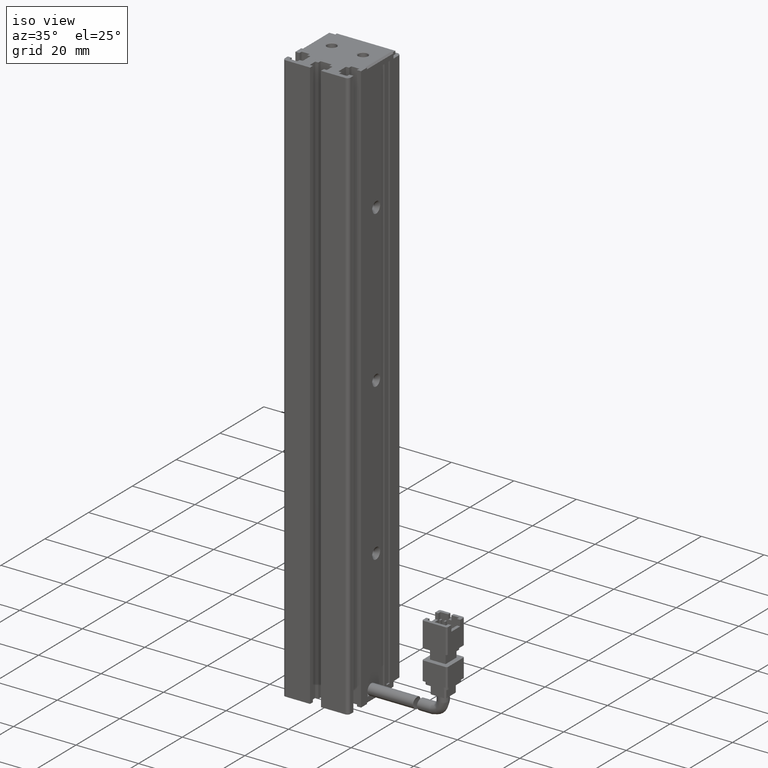
[diagram: clean part render]
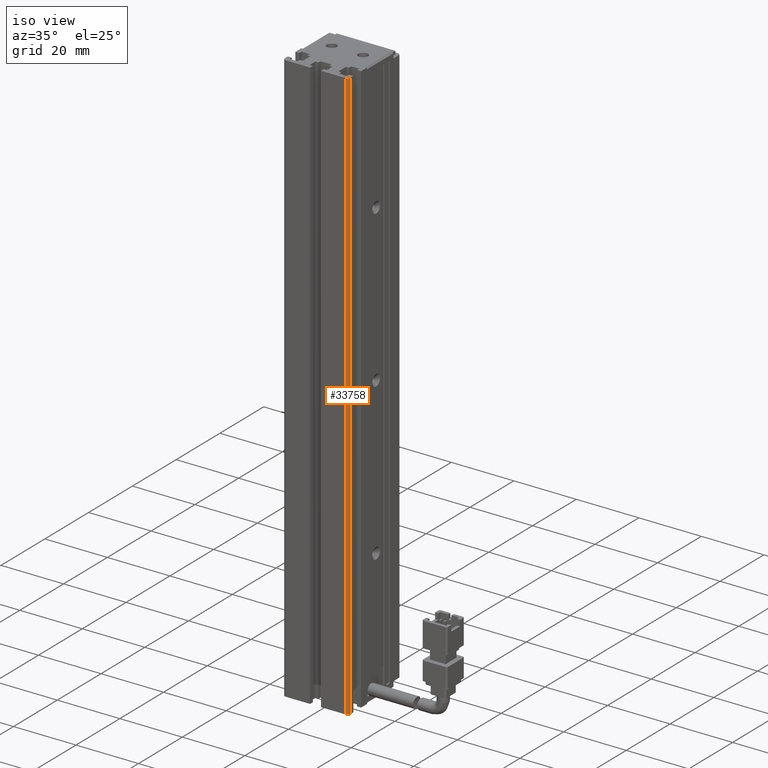
[diagram: same view with one face highlighted and labeled with its STEP entity id]
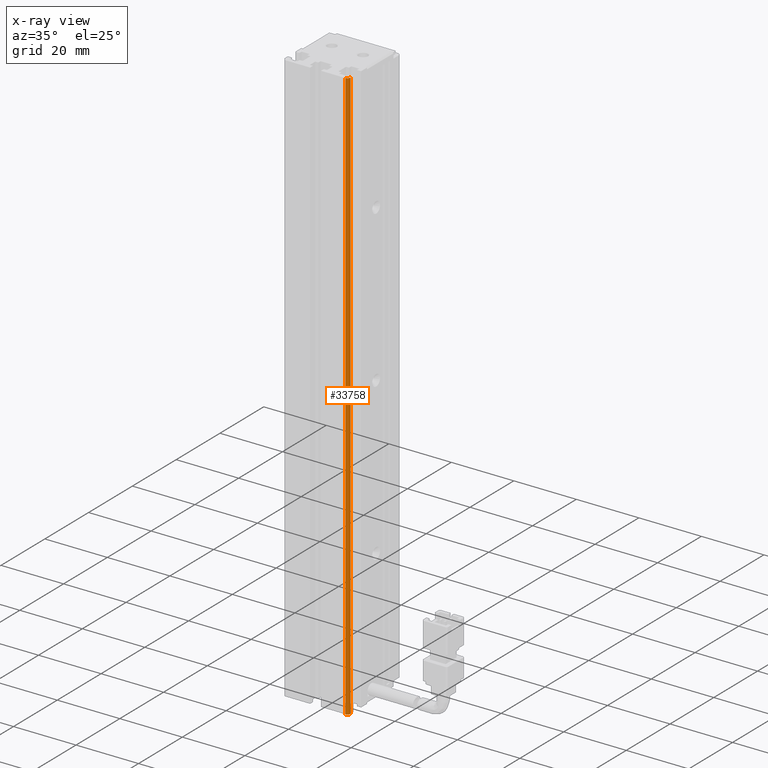
[diagram: x-ray of the same camera — body ghosted, the highlighted face saturated]
A machine part, iso view. The second image highlights one B-rep face of the part: STEP entity #33758.
The next image is the same camera in x-ray: the body ghosted, the highlighted face saturated — about 0% of this face is hidden behind the body in this view.
In plain terms, the highlighted cylindrical surface (edge-blend (fillet) strip) has radius 1 mm, axis along (-0, -0, -1).
Its self-contained STEP definition (entity closure, byte-faithful):
#208 = AXIS2_PLACEMENT_3D ( 'NONE', #18156, #44345, #30751 ) ;
#575 = LINE ( 'NONE', #30992, #33979 ) ;
#1624 = ORIENTED_EDGE ( 'NONE', *, *, #5862, .T. ) ;
#1779 = CARTESIAN_POINT ( 'NONE',  ( 51.42537974683541800, 11.99073232304837000, -23.00000000000000700 ) ) ;
#2697 = EDGE_CURVE ( 'NONE', #18262, #43904, #21107, .T. ) ;
#3480 = VERTEX_POINT ( 'NONE', #1779 ) ;
#5862 = EDGE_CURVE ( 'NONE', #26813, #3480, #575, .T. ) ;
#7258 = CYLINDRICAL_SURFACE ( 'NONE', #208, 1.000000000000000900 ) ;
#8526 = EDGE_CURVE ( 'NONE', #3480, #18262, #10657, .T. ) ;
#9044 = DIRECTION ( 'NONE',  ( 0.0000000000000000000, 0.0000000000000000000, 1.000000000000000000 ) ) ;
#9207 = DIRECTION ( 'NONE',  ( -1.000000000000000000, 0.0000000000000000000, 0.0000000000000000000 ) ) ;
#10359 = CARTESIAN_POINT ( 'NONE',  ( 50.42537974683541800, 10.99073232304837000, -23.00000000000000700 ) ) ;
#10657 = CIRCLE ( 'NONE', #40720, 1.000000000000000900 ) ;
#17031 = ORIENTED_EDGE ( 'NONE', *, *, #2697, .T. ) ;
#18156 = CARTESIAN_POINT ( 'NONE',  ( 50.42537974683541800, 11.99073232304837000, -23.00000000000000700 ) ) ;
#18262 = VERTEX_POINT ( 'NONE', #41257 ) ;
#19372 = EDGE_LOOP ( 'NONE', ( #26095, #17031, #47831, #1624 ) ) ;
#21107 = LINE ( 'NONE', #10359, #41572 ) ;
#23177 = DIRECTION ( 'NONE',  ( 0.0000000000000000000, 0.0000000000000000000, 1.000000000000000000 ) ) ;
#25763 = EDGE_CURVE ( 'NONE', #43904, #26813, #36044, .T. ) ;
#26095 = ORIENTED_EDGE ( 'NONE', *, *, #8526, .T. ) ;
#26813 = VERTEX_POINT ( 'NONE', #27558 ) ;
#27558 = CARTESIAN_POINT ( 'NONE',  ( 51.42537974683541800, 11.99073232304837000, -207.0000000000000300 ) ) ;
#29336 = DIRECTION ( 'NONE',  ( -0.0000000000000000000, 0.0000000000000000000, -1.000000000000000000 ) ) ;
#30751 = DIRECTION ( 'NONE',  ( -1.000000000000000000, 0.0000000000000000000, 0.0000000000000000000 ) ) ;
#30992 = CARTESIAN_POINT ( 'NONE',  ( 51.42537974683541800, 11.99073232304837000, -23.00000000000000700 ) ) ;
#31670 = CARTESIAN_POINT ( 'NONE',  ( 50.42537974683541800, 11.99073232304837000, -207.0000000000000300 ) ) ;
#33758 = ADVANCED_FACE ( 'NONE', ( #42414 ), #7258, .T. ) ;
#33979 = VECTOR ( 'NONE', #23177, 1000.000000000000000 ) ;
#34623 = AXIS2_PLACEMENT_3D ( 'NONE', #31670, #9044, #9207 ) ;
#36044 = CIRCLE ( 'NONE', #34623, 1.000000000000000900 ) ;
#39455 = DIRECTION ( 'NONE',  ( -1.000000000000000000, 0.0000000000000000000, 0.0000000000000000000 ) ) ;
#39777 = CARTESIAN_POINT ( 'NONE',  ( 50.42537974683541800, 11.99073232304837000, -23.00000000000000700 ) ) ;
#40720 = AXIS2_PLACEMENT_3D ( 'NONE', #39777, #46997, #39455 ) ;
#41257 = CARTESIAN_POINT ( 'NONE',  ( 50.42537974683541800, 10.99073232304837000, -23.00000000000000700 ) ) ;
#41572 = VECTOR ( 'NONE', #29336, 1000.000000000000000 ) ;
#42414 = FACE_OUTER_BOUND ( 'NONE', #19372, .T. ) ;
#43904 = VERTEX_POINT ( 'NONE', #44651 ) ;
#44345 = DIRECTION ( 'NONE',  ( -0.0000000000000000000, -0.0000000000000000000, -1.000000000000000000 ) ) ;
#44651 = CARTESIAN_POINT ( 'NONE',  ( 50.42537974683541800, 10.99073232304837000, -207.0000000000000300 ) ) ;
#46997 = DIRECTION ( 'NONE',  ( -0.0000000000000000000, -0.0000000000000000000, -1.000000000000000000 ) ) ;
#47831 = ORIENTED_EDGE ( 'NONE', *, *, #25763, .T. ) ;